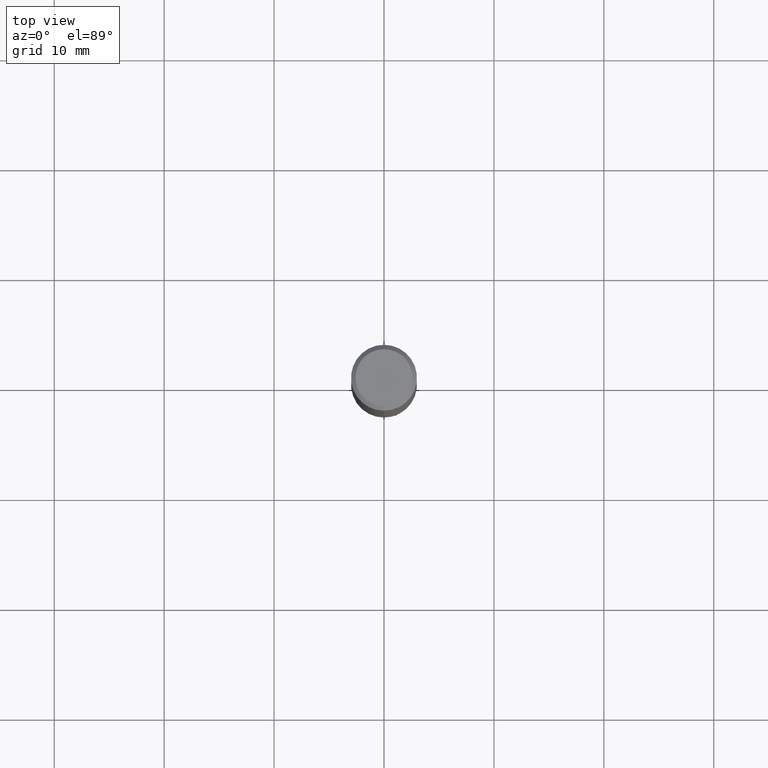
[diagram: clean part render]
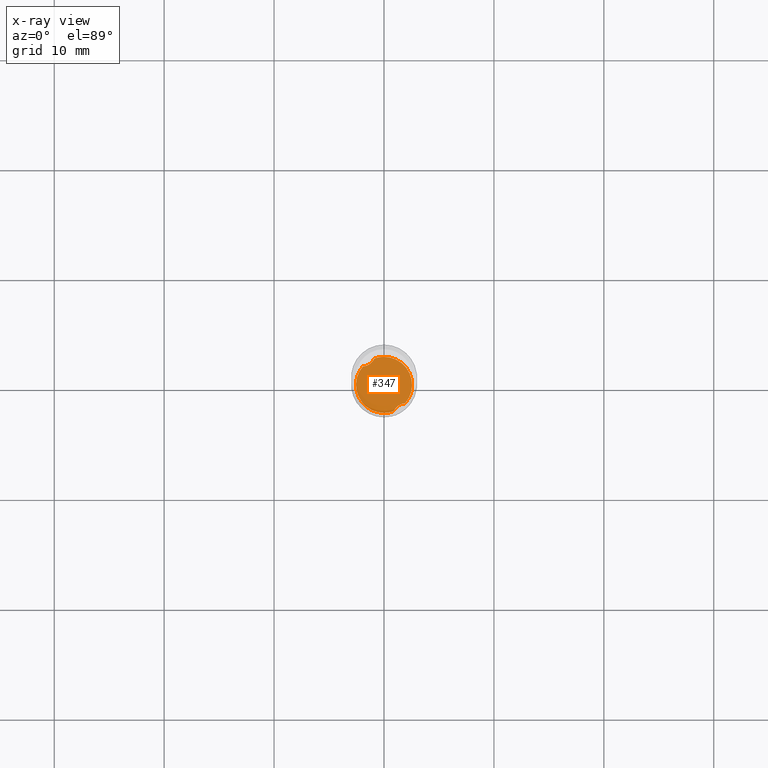
[diagram: x-ray — body ghosted, one internal face saturated and labeled with its STEP entity id]
A machine part, top view, then the same camera in x-ray: the body is ghosted and one INTERNAL B-rep face — a face not visible from any outside direction — is saturated and labeled: STEP entity #347.
In plain terms, the highlighted planar face has unit normal (-0, 0, 1).
Its self-contained STEP definition (entity closure, byte-faithful):
#275=EDGE_CURVE('',#415,#487,#767,.T.);
#289=VERTEX_POINT('',#782);
#347=ADVANCED_FACE('',(#844),#845,.T.);
#387=EDGE_CURVE('',#289,#415,#892,.T.);
#391=VERTEX_POINT('',#896);
#415=VERTEX_POINT('',#923);
#479=EDGE_CURVE('',#391,#541,#991,.T.);
#487=VERTEX_POINT('',#1000);
#541=VERTEX_POINT('',#1057);
#559=EDGE_CURVE('',#541,#719,#1075,.T.);
#593=EDGE_CURVE('',#289,#719,#1112,.T.);
#717=EDGE_CURVE('',#391,#487,#1250,.T.);
#719=VERTEX_POINT('',#1252);
#767=CIRCLE('',#1891,2.5499);
#782=CARTESIAN_POINT('',(0.87123605110139,-2.39644272897586,-38.0));
#844=FACE_OUTER_BOUND('',#2582,.T.);
#845=PLANE('',#2583);
#892=CIRCLE('',#2917,2.5499);
#896=CARTESIAN_POINT('',(-0.871236051101388,2.39644272897586,-38.0));
#923=CARTESIAN_POINT('',(3.05696002601983E-016,-2.5499,-38.0));
#991=CIRCLE('',#4129,2.5499);
#1000=CARTESIAN_POINT('',(-1.93086131063745,1.66546228089483,-38.0));
#1057=CARTESIAN_POINT('',(-3.05865020705219E-016,2.5499,-38.0));
#1075=CIRCLE('',#4355,2.5499);
#1112=B_SPLINE_CURVE_WITH_KNOTS('',3,(#4527,#4528,#4529,#4530,#4531,#4532,#4533,#4534,#4535,#4536,#4537,#4538),.UNSPECIFIED.,.F.,.F.,(4,2,2,2,2,4),(0.0,0.557389702678848,1.06496040878596,1.57409210904358,1.90932863926886,2.25977965926867),.UNSPECIFIED.);
#1250=B_SPLINE_CURVE_WITH_KNOTS('',3,(#5158,#5159,#5160,#5161,#5162,#5163,#5164,#5165,#5166,#5167,#5168,#5169),.UNSPECIFIED.,.F.,.F.,(4,2,2,2,2,4),(0.0,0.557389702678848,1.06496040878596,1.57409210904358,1.90932863926886,2.25977965926869),.UNSPECIFIED.);
#1252=CARTESIAN_POINT('',(1.93086131063745,-1.66546228089483,-38.0));
#1891=AXIS2_PLACEMENT_3D('',#5230,#5231,#5232);
#2582=EDGE_LOOP('',(#5295,#5296,#5297,#5298,#5299,#5300));
#2583=AXIS2_PLACEMENT_3D('',#5301,#5302,#5303);
#2917=AXIS2_PLACEMENT_3D('',#5374,#5375,#5376);
#4129=AXIS2_PLACEMENT_3D('',#5469,#5470,#5471);
#4355=AXIS2_PLACEMENT_3D('',#5538,#5539,#5540);
#4527=CARTESIAN_POINT('',(0.790197368874679,-2.5999,-38.0));
#4528=CARTESIAN_POINT('',(0.846185697448169,-2.42273998312124,-38.0));
#4529=CARTESIAN_POINT('',(0.933271039807631,-2.25827812182303,-37.9999999999917));
#4530=CARTESIAN_POINT('',(1.16172730893098,-1.98761544631137,-37.9999999999917));
#4531=CARTESIAN_POINT('',(1.2936497427458,-1.8822896387558,-38.0000000000004));
#4532=CARTESIAN_POINT('',(1.59435390511202,-1.72800735704684,-38.0000000000004));
#4533=CARTESIAN_POINT('',(1.75783947355815,-1.68197009888274,-38.0000000000001));
#4534=CARTESIAN_POINT('',(2.0375655476522,-1.65527082737338,-38.0000000000001));
#4535=CARTESIAN_POINT('',(2.14943119559766,-1.65777935526515,-38.0));
#4536=CARTESIAN_POINT('',(2.37586559020192,-1.68691518189043,-38.0));
#4537=CARTESIAN_POINT('',(2.489679965907,-1.71453966918723,-38.0));
#4538=CARTESIAN_POINT('',(2.5999,-1.75302462000238,-38.0));
#5158=CARTESIAN_POINT('',(-0.790197368874679,2.5999,-38.0));
#5159=CARTESIAN_POINT('',(-0.846185697448169,2.42273998312124,-38.0));
#5160=CARTESIAN_POINT('',(-0.933271039807631,2.25827812182303,-37.9999999999917));
#5161=CARTESIAN_POINT('',(-1.16172730893098,1.98761544631137,-37.9999999999917));
#5162=CARTESIAN_POINT('',(-1.2936497427458,1.8822896387558,-38.0000000000004));
#5163=CARTESIAN_POINT('',(-1.59435390511202,1.72800735704684,-38.0000000000004));
#5164=CARTESIAN_POINT('',(-1.75783947355815,1.68197009888274,-38.0000000000001));
#5165=CARTESIAN_POINT('',(-2.0375655476522,1.65527082737338,-38.0000000000001));
#5166=CARTESIAN_POINT('',(-2.14943119559766,1.65777935526515,-38.0));
#5167=CARTESIAN_POINT('',(-2.37586559020193,1.68691518189043,-38.0));
#5168=CARTESIAN_POINT('',(-2.48967996590702,1.71453966918724,-38.0));
#5169=CARTESIAN_POINT('',(-2.5999,1.75302462000238,-38.0));
#5230=CARTESIAN_POINT('',(0.0,0.0,-38.0));
#5231=DIRECTION('',(0.0,0.0,-1.0));
#5232=DIRECTION('',(0.0,1.0,0.0));
#5295=ORIENTED_EDGE('',*,*,#593,.T.);
#5296=ORIENTED_EDGE('',*,*,#559,.F.);
#5297=ORIENTED_EDGE('',*,*,#479,.F.);
#5298=ORIENTED_EDGE('',*,*,#717,.T.);
#5299=ORIENTED_EDGE('',*,*,#275,.F.);
#5300=ORIENTED_EDGE('',*,*,#387,.F.);
#5301=CARTESIAN_POINT('',(0.0,1.27495,-38.0));
#5302=DIRECTION('',(-0.0,0.0,1.0));
#5303=DIRECTION('',(0.0,-1.0,0.0));
#5374=CARTESIAN_POINT('',(0.0,0.0,-38.0));
#5375=DIRECTION('',(0.0,0.0,-1.0));
#5376=DIRECTION('',(0.0,1.0,0.0));
#5469=CARTESIAN_POINT('',(0.0,0.0,-38.0));
#5470=DIRECTION('',(0.0,0.0,-1.0));
#5471=DIRECTION('',(0.0,1.0,0.0));
#5538=CARTESIAN_POINT('',(0.0,0.0,-38.0));
#5539=DIRECTION('',(0.0,0.0,-1.0));
#5540=DIRECTION('',(0.0,1.0,0.0));